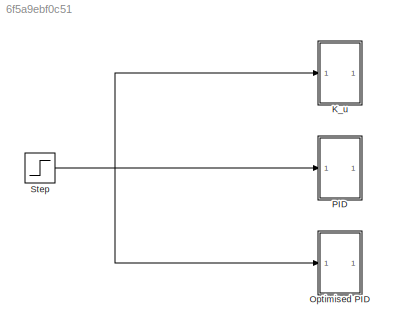
MODEL slx_6f5a9ebf0c51
KIND model
CONFIG AbsTol = auto
CONFIG EnableMultiTasking = off
CONFIG FixedStep = auto
CONFIG MaxStep = auto
CONFIG MinStep = auto
CONFIG RelTol = 1e-3
CONFIG SampleTimeConstraint = Unconstrained
CONFIG SolverName = VariableStepAuto
CONFIG StartTime = 0.0
CONFIG StopTime = 10.0
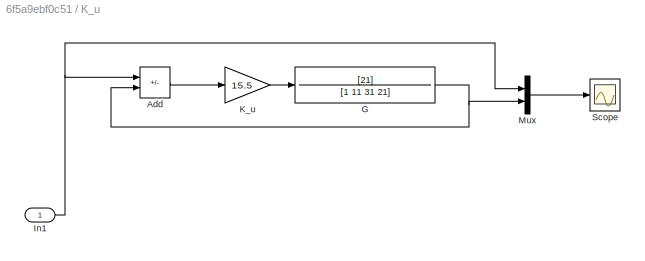
BLOCK [SubSystem] K_u
BLOCK [Sum] K_u/Add
  IconShape = rectangular
  Inputs = +-
BLOCK [TransferFcn] K_u/G
  Denominator = [1 11 31 21]
  Numerator = [21]
BLOCK [Inport] K_u/In1
BLOCK [Gain] K_u/K_u
  Gain = 15.5
BLOCK [Mux] K_u/Mux
  DisplayOption = bar
  Inputs = 2
BLOCK [Scope] K_u/Scope
  Floating = off
  NumInputPorts = 1
  ScopeSpecificationString = Simulink.scopes.TimeScopeBlockCfg('CurrentConfiguration', extmgr.ConfigurationSet(extmgr.Configuration('Core','General UI',true),extmgr.Configuration('Core','Source UI',true),extmgr.Configuration('Sources','WiredSimulink',true),extmgr.Configuration('Visuals','Time Domain',true,'SerializedDisplays',{struct('MinYLimReal','-0.26361','MaxYLimReal','2.12966','YLabelReal','','MinYLimMag','0.00000','MaxY...<+1737ch>
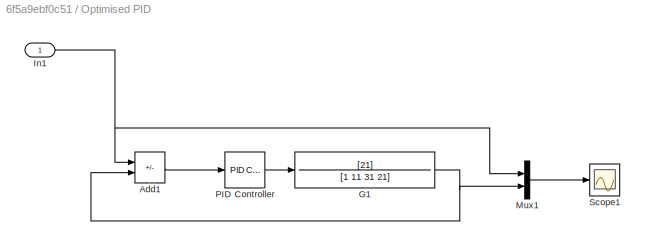
BLOCK [SubSystem] Optimised PID
BLOCK [Sum] Optimised PID/Add1
  IconShape = rectangular
  Inputs = +-
BLOCK [TransferFcn] Optimised PID/G1
  Denominator = [1 11 31 21]
  Numerator = [21]
BLOCK [Inport] Optimised PID/In1
BLOCK [Mux] Optimised PID/Mux1
  DisplayOption = bar
  Inputs = 2
BLOCK [Reference] Optimised PID/PID Controller  REF=slpidlib/PID Controller
  LibrarySourceBlock = simulink/Continuous/PID Controller
  SourceBlock = slpidlib/PID Controller
  SourceType = PID 1dof
BLOCK [Scope] Optimised PID/Scope1
  Floating = off
  NumInputPorts = 1
  ScopeSpecificationString = Simulink.scopes.TimeScopeBlockCfg('CurrentConfiguration', extmgr.ConfigurationSet(extmgr.Configuration('Core','General UI',true),extmgr.Configuration('Core','Source UI',true),extmgr.Configuration('Sources','WiredSimulink',true,'DataLoggingVariableName','ScopeData2'),extmgr.Configuration('Visuals','Time Domain',true,'SerializedDisplays',{struct('MinYLimReal','-0.26361','MaxYLimReal','2.12966','YLab...<+1471ch>
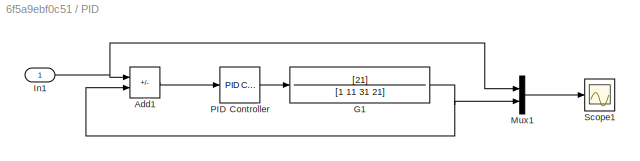
BLOCK [SubSystem] PID
BLOCK [Sum] PID/Add1
  IconShape = rectangular
  Inputs = +-
BLOCK [TransferFcn] PID/G1
  Denominator = [1 11 31 21]
  Numerator = [21]
BLOCK [Inport] PID/In1
BLOCK [Mux] PID/Mux1
  DisplayOption = bar
  Inputs = 2
BLOCK [Reference] PID/PID Controller  REF=slpidlib/PID Controller
  LibrarySourceBlock = simulink/Continuous/PID Controller
  SourceBlock = slpidlib/PID Controller
  SourceType = PID 1dof
BLOCK [Scope] PID/Scope1
  Floating = off
  NumInputPorts = 1
  ScopeSpecificationString = Simulink.scopes.TimeScopeBlockCfg('CurrentConfiguration', extmgr.ConfigurationSet(extmgr.Configuration('Core','General UI',true),extmgr.Configuration('Core','Source UI',true),extmgr.Configuration('Sources','WiredSimulink',true,'DataLoggingVariableName','ScopeData1'),extmgr.Configuration('Visuals','Time Domain',true,'SerializedDisplays',{struct('MinYLimReal','-0.26361','MaxYLimReal','2.12966','YLab...<+1444ch>
BLOCK [Step] Step
  SampleTime = 0
LINE K_u/Add:1 -> K_u/K_u:1
NET K_u/G:1 -> K_u/Add:2, K_u/Mux:2
NET K_u/In1:1 -> K_u/Add:1, K_u/Mux:1
LINE K_u/K_u:1 -> K_u/G:1
LINE K_u/Mux:1 -> K_u/Scope:1
LINE Optimised PID/Add1:1 -> Optimised PID/PID Controller:1
NET Optimised PID/G1:1 -> Optimised PID/Add1:2, Optimised PID/Mux1:2
NET Optimised PID/In1:1 -> Optimised PID/Add1:1, Optimised PID/Mux1:1
LINE Optimised PID/Mux1:1 -> Optimised PID/Scope1:1
LINE Optimised PID/PID Controller:1 -> Optimised PID/G1:1
LINE PID/Add1:1 -> PID/PID Controller:1
NET PID/G1:1 -> PID/Add1:2, PID/Mux1:2
NET PID/In1:1 -> PID/Add1:1, PID/Mux1:1
LINE PID/Mux1:1 -> PID/Scope1:1
LINE PID/PID Controller:1 -> PID/G1:1
NET Step:1 -> K_u:1, Optimised PID:1, PID:1
note: NET lines group one-source signal fan-out (src -> all destinations, sorted); 1:1 wires keep LINE
